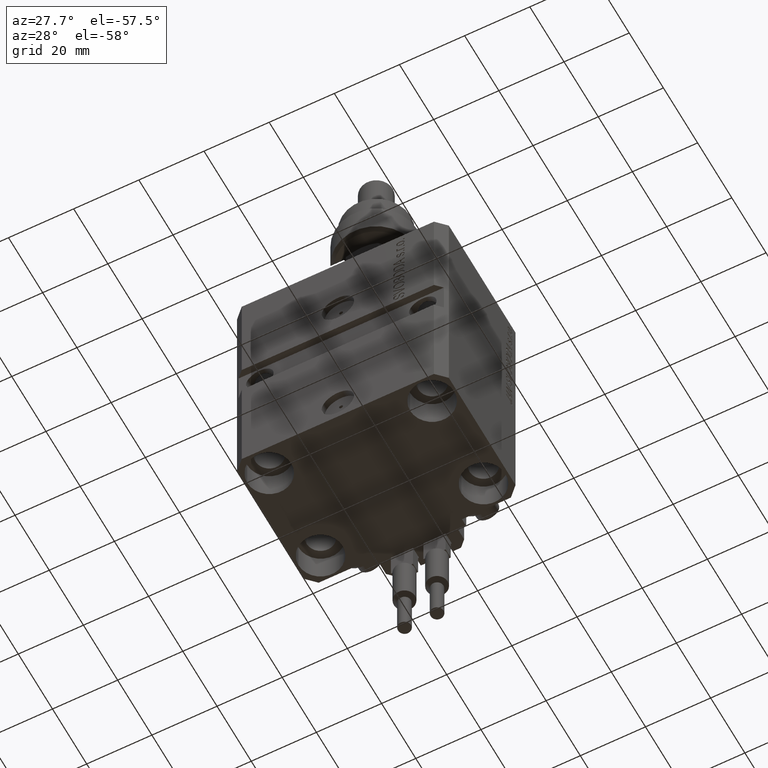
[diagram: clean part render]
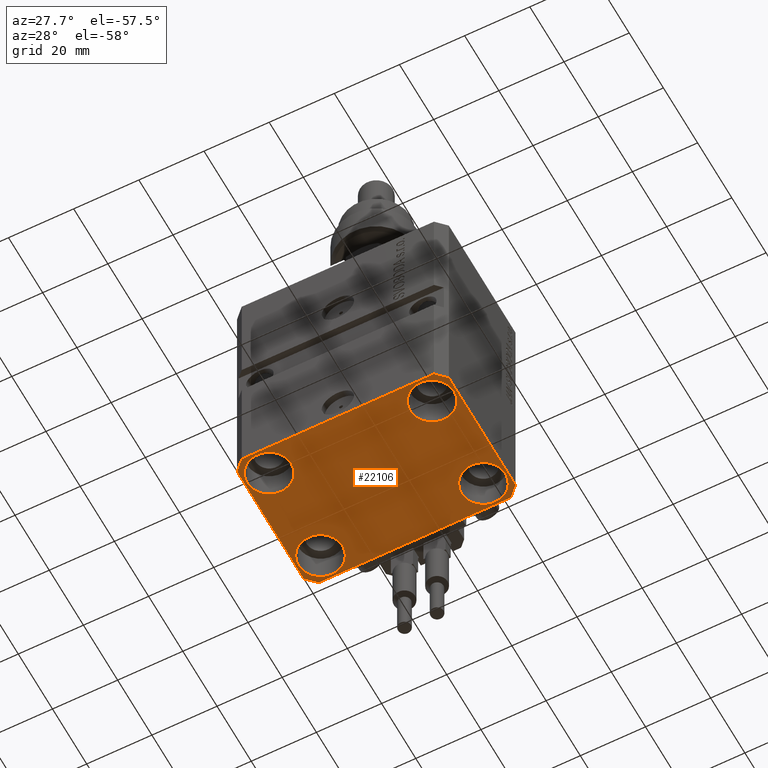
[diagram: same view with one face highlighted and labeled with its STEP entity id]
A machine part, auxiliary view. The second image highlights one B-rep face of the part: STEP entity #22106.
In plain terms, the highlighted planar face has unit normal (0, 0, 1).
Its self-contained STEP definition (entity closure, byte-faithful):
#352 = EDGE_CURVE ( 'NONE', #47159, #22346, #41591, .T. ) ;
#445 = CIRCLE ( 'NONE', #5360, 6.749999999977465137 ) ;
#1150 = FACE_BOUND ( 'NONE', #30962, .T. ) ;
#1338 = VECTOR ( 'NONE', #28171, 1000.000000000000000 ) ;
#1377 = CARTESIAN_POINT ( 'NONE',  ( 18.25000000002253842, -15.00000000000000000, -77.00000000000000000 ) ) ;
#1544 = ORIENTED_EDGE ( 'NONE', *, *, #36896, .F. ) ;
#1816 = VECTOR ( 'NONE', #49821, 1000.000000000000000 ) ;
#2044 = VERTEX_POINT ( 'NONE', #45153 ) ;
#2230 = EDGE_LOOP ( 'NONE', ( #23239, #39193, #28828, #38301, #11909, #15066, #1544, #13405 ) ) ;
#2729 = DIRECTION ( 'NONE',  ( -0.000000000000000000, -0.000000000000000000, 1.000000000000000000 ) ) ;
#3343 = VERTEX_POINT ( 'NONE', #25060 ) ;
#4163 = DIRECTION ( 'NONE',  ( 1.000000000000000000, 0.000000000000000000, 0.000000000000000000 ) ) ;
#4527 = EDGE_CURVE ( 'NONE', #21076, #43983, #7081, .T. ) ;
#4803 = LINE ( 'NONE', #19482, #1338 ) ;
#5010 = CARTESIAN_POINT ( 'NONE',  ( 32.49999999999702993, 19.49999999999945999, -77.00000000000000000 ) ) ;
#5183 = LINE ( 'NONE', #21110, #26782 ) ;
#5250 = FACE_BOUND ( 'NONE', #45831, .T. ) ;
#5360 = AXIS2_PLACEMENT_3D ( 'NONE', #26381, #48994, #14584 ) ;
#5503 = FACE_OUTER_BOUND ( 'NONE', #2230, .T. ) ;
#5692 = AXIS2_PLACEMENT_3D ( 'NONE', #38428, #2729, #18907 ) ;
#6008 = CARTESIAN_POINT ( 'NONE',  ( -29.49999999999650413, 22.49999999999949907, -77.00000000000000000 ) ) ;
#6044 = ORIENTED_EDGE ( 'NONE', *, *, #36999, .T. ) ;
#6802 = EDGE_CURVE ( 'NONE', #19764, #3343, #26064, .T. ) ;
#7081 = CIRCLE ( 'NONE', #30861, 6.750000000022533087 ) ;
#7514 = CARTESIAN_POINT ( 'NONE',  ( -25.00000000000000355, -15.00000000000000000, -77.00000000000000000 ) ) ;
#8850 = EDGE_CURVE ( 'NONE', #49054, #10140, #17716, .T. ) ;
#8949 = DIRECTION ( 'NONE',  ( 0.000000000000000000, -1.000000000000000000, 0.000000000000000000 ) ) ;
#9373 = CARTESIAN_POINT ( 'NONE',  ( 0.000000000000000000, 0.000000000000000000, -77.00000000000000000 ) ) ;
#9588 = CARTESIAN_POINT ( 'NONE',  ( 31.74999999997746869, -15.00000000000000000, -77.00000000000000000 ) ) ;
#9929 = EDGE_CURVE ( 'NONE', #3343, #19764, #36031, .T. ) ;
#10124 = CARTESIAN_POINT ( 'NONE',  ( -25.00000000000000355, -15.00000000000000000, -77.00000000000000000 ) ) ;
#10140 = VERTEX_POINT ( 'NONE', #21768 ) ;
#10559 = VECTOR ( 'NONE', #22087, 1000.000000000000000 ) ;
#11909 = ORIENTED_EDGE ( 'NONE', *, *, #46758, .F. ) ;
#13405 = ORIENTED_EDGE ( 'NONE', *, *, #352, .F. ) ;
#13968 = AXIS2_PLACEMENT_3D ( 'NONE', #23173, #19578, #4163 ) ;
#14584 = DIRECTION ( 'NONE',  ( 1.000000000000000000, 0.000000000000000000, 0.000000000000000000 ) ) ;
#14653 = VERTEX_POINT ( 'NONE', #35889 ) ;
#14738 = CIRCLE ( 'NONE', #5692, 6.749999999977465137 ) ;
#15066 = ORIENTED_EDGE ( 'NONE', *, *, #27795, .F. ) ;
#15434 = CARTESIAN_POINT ( 'NONE',  ( -18.24999999997747224, 15.00000000000000000, -77.00000000000000000 ) ) ;
#15572 = CARTESIAN_POINT ( 'NONE',  ( 29.49999999999650413, -22.49999999999949196, -77.00000000000000000 ) ) ;
#16075 = EDGE_CURVE ( 'NONE', #43983, #21076, #36099, .T. ) ;
#16823 = DIRECTION ( 'NONE',  ( 0.000000000000000000, 0.000000000000000000, 1.000000000000000000 ) ) ;
#17007 = AXIS2_PLACEMENT_3D ( 'NONE', #18852, #38119, #30648 ) ;
#17073 = DIRECTION ( 'NONE',  ( -0.000000000000000000, -0.000000000000000000, 1.000000000000000000 ) ) ;
#17574 = FACE_BOUND ( 'NONE', #50164, .T. ) ;
#17716 = LINE ( 'NONE', #33390, #10559 ) ;
#17745 = CARTESIAN_POINT ( 'NONE',  ( 24.99999999999999645, 15.00000000000000888, -77.00000000000000000 ) ) ;
#18296 = CARTESIAN_POINT ( 'NONE',  ( -31.75000000004154899, -15.00000000000000000, -77.00000000000000000 ) ) ;
#18852 = CARTESIAN_POINT ( 'NONE',  ( 24.99999999999999645, 15.00000000000000888, -77.00000000000000000 ) ) ;
#18907 = DIRECTION ( 'NONE',  ( 1.000000000000000000, 0.000000000000000000, 0.000000000000000000 ) ) ;
#19164 = VERTEX_POINT ( 'NONE', #33126 ) ;
#19222 = CARTESIAN_POINT ( 'NONE',  ( -31.75000000002253842, 15.00000000000000000, -77.00000000000000000 ) ) ;
#19482 = CARTESIAN_POINT ( 'NONE',  ( -29.49999999999650413, -22.49999999999949907, -77.00000000000000000 ) ) ;
#19578 = DIRECTION ( 'NONE',  ( -0.000000000000000000, -0.000000000000000000, 1.000000000000000000 ) ) ;
#19764 = VERTEX_POINT ( 'NONE', #18296 ) ;
#20140 = VECTOR ( 'NONE', #8949, 1000.000000000000000 ) ;
#21076 = VERTEX_POINT ( 'NONE', #15434 ) ;
#21110 = CARTESIAN_POINT ( 'NONE',  ( 32.49999999999651124, -19.49999999999949196, -77.00000000000000000 ) ) ;
#21429 = FACE_BOUND ( 'NONE', #45555, .T. ) ;
#21768 = CARTESIAN_POINT ( 'NONE',  ( 32.49999999999651124, -19.49999999999949196, -77.00000000000000000 ) ) ;
#21805 = EDGE_CURVE ( 'NONE', #28252, #36737, #14738, .T. ) ;
#22087 = DIRECTION ( 'NONE',  ( 0.7071067811865483499, 0.7071067811865466846, 0.000000000000000000 ) ) ;
#22106 = ADVANCED_FACE ( 'NONE', ( #1150, #17574, #5250, #21429, #5503 ), #33228, .F. ) ;
#22346 = VERTEX_POINT ( 'NONE', #47342 ) ;
#22551 = CARTESIAN_POINT ( 'NONE',  ( -32.49999999999650413, -19.49999999999949907, -77.00000000000000000 ) ) ;
#23173 = CARTESIAN_POINT ( 'NONE',  ( -25.00000000000000355, 15.00000000000000000, -77.00000000000000000 ) ) ;
#23239 = ORIENTED_EDGE ( 'NONE', *, *, #26320, .F. ) ;
#23571 = CIRCLE ( 'NONE', #17007, 6.749999999958452790 ) ;
#25060 = CARTESIAN_POINT ( 'NONE',  ( -18.24999999995845812, -15.00000000000000000, -77.00000000000000000 ) ) ;
#25702 = DIRECTION ( 'NONE',  ( -0.000000000000000000, -0.000000000000000000, 1.000000000000000000 ) ) ;
#25963 = DIRECTION ( 'NONE',  ( 1.000000000000000000, 0.000000000000000000, 0.000000000000000000 ) ) ;
#25984 = ORIENTED_EDGE ( 'NONE', *, *, #4527, .T. ) ;
#26064 = CIRCLE ( 'NONE', #30967, 6.750000000041541881 ) ;
#26320 = EDGE_CURVE ( 'NONE', #2044, #47159, #39018, .T. ) ;
#26381 = CARTESIAN_POINT ( 'NONE',  ( 25.00000000000000355, -15.00000000000000000, -77.00000000000000000 ) ) ;
#26513 = DIRECTION ( 'NONE',  ( -0.000000000000000000, -0.000000000000000000, 1.000000000000000000 ) ) ;
#26782 = VECTOR ( 'NONE', #36777, 1000.000000000000000 ) ;
#27795 = EDGE_CURVE ( 'NONE', #41615, #19164, #42310, .T. ) ;
#28171 = DIRECTION ( 'NONE',  ( 1.000000000000000000, 1.176083712526788232E-16, 0.000000000000000000 ) ) ;
#28252 = VERTEX_POINT ( 'NONE', #1377 ) ;
#28590 = CARTESIAN_POINT ( 'NONE',  ( 18.25000000004154543, 15.00000000000000888, -77.00000000000000000 ) ) ;
#28828 = ORIENTED_EDGE ( 'NONE', *, *, #48301, .F. ) ;
#28953 = LINE ( 'NONE', #37175, #20140 ) ;
#29106 = DIRECTION ( 'NONE',  ( 1.000000000000000000, 0.000000000000000000, 0.000000000000000000 ) ) ;
#29351 = DIRECTION ( 'NONE',  ( -0.000000000000000000, -0.000000000000000000, 1.000000000000000000 ) ) ;
#30376 = AXIS2_PLACEMENT_3D ( 'NONE', #9373, #16823, #32476 ) ;
#30545 = CARTESIAN_POINT ( 'NONE',  ( 29.49999999999707967, 22.49999999999951328, -77.00000000000000000 ) ) ;
#30648 = DIRECTION ( 'NONE',  ( 1.000000000000000000, 0.000000000000000000, 0.000000000000000000 ) ) ;
#30861 = AXIS2_PLACEMENT_3D ( 'NONE', #44789, #29351, #37079 ) ;
#30962 = EDGE_LOOP ( 'NONE', ( #41660, #39062 ) ) ;
#30967 = AXIS2_PLACEMENT_3D ( 'NONE', #10124, #17073, #29106 ) ;
#32476 = DIRECTION ( 'NONE',  ( 1.000000000000000000, 0.000000000000000000, -0.000000000000000000 ) ) ;
#33126 = CARTESIAN_POINT ( 'NONE',  ( -29.49999999999650413, -22.49999999999949907, -77.00000000000000000 ) ) ;
#33205 = ORIENTED_EDGE ( 'NONE', *, *, #42523, .T. ) ;
#33228 = PLANE ( 'NONE',  #30376 ) ;
#33390 = CARTESIAN_POINT ( 'NONE',  ( 29.49999999999650413, -22.49999999999949196, -77.00000000000000000 ) ) ;
#34479 = DIRECTION ( 'NONE',  ( 1.000000000000000000, 0.000000000000000000, 0.000000000000000000 ) ) ;
#35889 = CARTESIAN_POINT ( 'NONE',  ( 31.74999999995845101, 15.00000000000000888, -77.00000000000000000 ) ) ;
#36031 = CIRCLE ( 'NONE', #41764, 6.750000000041541881 ) ;
#36099 = CIRCLE ( 'NONE', #13968, 6.750000000022533087 ) ;
#36681 = VERTEX_POINT ( 'NONE', #28590 ) ;
#36737 = VERTEX_POINT ( 'NONE', #9588 ) ;
#36769 = VERTEX_POINT ( 'NONE', #40908 ) ;
#36777 = DIRECTION ( 'NONE',  ( 1.334402673828349134E-14, 1.000000000000000000, 0.000000000000000000 ) ) ;
#36896 = EDGE_CURVE ( 'NONE', #22346, #41615, #28953, .T. ) ;
#36976 = CARTESIAN_POINT ( 'NONE',  ( -29.49999999999650413, 22.49999999999949907, -77.00000000000000000 ) ) ;
#36999 = EDGE_CURVE ( 'NONE', #36737, #28252, #445, .T. ) ;
#37079 = DIRECTION ( 'NONE',  ( 1.000000000000000000, 0.000000000000000000, 0.000000000000000000 ) ) ;
#37175 = CARTESIAN_POINT ( 'NONE',  ( -32.49999999999650413, 19.49999999999949907, -77.00000000000000000 ) ) ;
#37244 = DIRECTION ( 'NONE',  ( 0.7071067811865474617, -0.7071067811865474617, 0.000000000000000000 ) ) ;
#38119 = DIRECTION ( 'NONE',  ( -0.000000000000000000, -0.000000000000000000, 1.000000000000000000 ) ) ;
#38301 = ORIENTED_EDGE ( 'NONE', *, *, #8850, .F. ) ;
#38428 = CARTESIAN_POINT ( 'NONE',  ( 25.00000000000000355, -15.00000000000000000, -77.00000000000000000 ) ) ;
#39018 = LINE ( 'NONE', #30545, #1816 ) ;
#39062 = ORIENTED_EDGE ( 'NONE', *, *, #9929, .T. ) ;
#39193 = ORIENTED_EDGE ( 'NONE', *, *, #49865, .F. ) ;
#39904 = AXIS2_PLACEMENT_3D ( 'NONE', #17745, #25702, #25963 ) ;
#39951 = VECTOR ( 'NONE', #43562, 1000.000000000000000 ) ;
#40208 = LINE ( 'NONE', #5010, #39951 ) ;
#40908 = CARTESIAN_POINT ( 'NONE',  ( 32.49999999999702993, 19.49999999999945999, -77.00000000000000000 ) ) ;
#41090 = DIRECTION ( 'NONE',  ( -0.7071067811865474617, -0.7071067811865474617, 0.000000000000000000 ) ) ;
#41501 = VECTOR ( 'NONE', #41090, 1000.000000000000114 ) ;
#41591 = LINE ( 'NONE', #36976, #41501 ) ;
#41615 = VERTEX_POINT ( 'NONE', #22551 ) ;
#41660 = ORIENTED_EDGE ( 'NONE', *, *, #6802, .T. ) ;
#41764 = AXIS2_PLACEMENT_3D ( 'NONE', #7514, #26513, #34479 ) ;
#42310 = LINE ( 'NONE', #50514, #44418 ) ;
#42523 = EDGE_CURVE ( 'NONE', #36681, #14653, #48912, .T. ) ;
#43562 = DIRECTION ( 'NONE',  ( -0.7071067811865352493, 0.7071067811865597852, 0.000000000000000000 ) ) ;
#43983 = VERTEX_POINT ( 'NONE', #19222 ) ;
#44418 = VECTOR ( 'NONE', #37244, 1000.000000000000114 ) ;
#44789 = CARTESIAN_POINT ( 'NONE',  ( -25.00000000000000355, 15.00000000000000000, -77.00000000000000000 ) ) ;
#45153 = CARTESIAN_POINT ( 'NONE',  ( 29.49999999999707967, 22.49999999999951328, -77.00000000000000000 ) ) ;
#45253 = ORIENTED_EDGE ( 'NONE', *, *, #16075, .T. ) ;
#45555 = EDGE_LOOP ( 'NONE', ( #45253, #25984 ) ) ;
#45831 = EDGE_LOOP ( 'NONE', ( #33205, #47085 ) ) ;
#46758 = EDGE_CURVE ( 'NONE', #19164, #49054, #4803, .T. ) ;
#47085 = ORIENTED_EDGE ( 'NONE', *, *, #49284, .T. ) ;
#47159 = VERTEX_POINT ( 'NONE', #6008 ) ;
#47273 = ORIENTED_EDGE ( 'NONE', *, *, #21805, .T. ) ;
#47342 = CARTESIAN_POINT ( 'NONE',  ( -32.49999999999650413, 19.49999999999949907, -77.00000000000000000 ) ) ;
#48301 = EDGE_CURVE ( 'NONE', #10140, #36769, #5183, .T. ) ;
#48912 = CIRCLE ( 'NONE', #39904, 6.749999999958452790 ) ;
#48994 = DIRECTION ( 'NONE',  ( -0.000000000000000000, -0.000000000000000000, 1.000000000000000000 ) ) ;
#49054 = VERTEX_POINT ( 'NONE', #15572 ) ;
#49284 = EDGE_CURVE ( 'NONE', #14653, #36681, #23571, .T. ) ;
#49821 = DIRECTION ( 'NONE',  ( -1.000000000000000000, -2.352167425053553784E-16, 0.000000000000000000 ) ) ;
#49865 = EDGE_CURVE ( 'NONE', #36769, #2044, #40208, .T. ) ;
#50164 = EDGE_LOOP ( 'NONE', ( #47273, #6044 ) ) ;
#50514 = CARTESIAN_POINT ( 'NONE',  ( -32.49999999999650413, -19.49999999999949907, -77.00000000000000000 ) ) ;